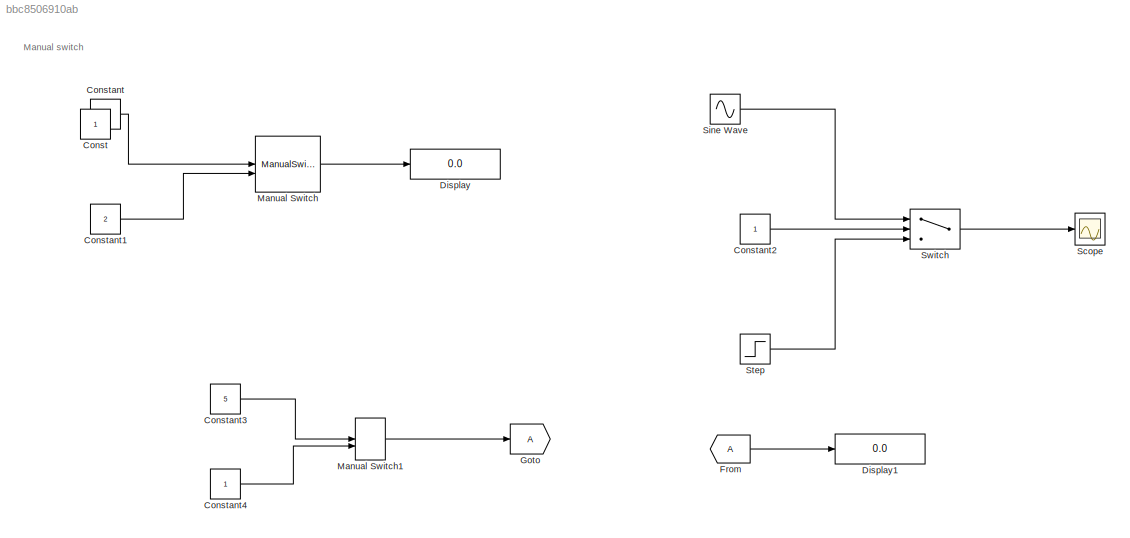
MODEL slx_bbc8506910ab
KIND model
CONFIG AbsTol = auto
CONFIG EnableMultiTasking = off
CONFIG FixedStep = auto
CONFIG MaxStep = auto
CONFIG MinStep = auto
CONFIG RelTol = 1e-3
CONFIG SampleTimeConstraint = Unconstrained
CONFIG Solver = VariableStepAuto
CONFIG SolverName = VariableStepAuto
CONFIG StartTime = 0.0
CONFIG StopTime = 10.0
BLOCK [Constant] Const
  IOType = siggen
BLOCK [Constant] Constant
  Value = 5
BLOCK [Constant] Constant1
  Value = 2
BLOCK [Constant] Constant2
BLOCK [Constant] Constant3
  Value = 5
BLOCK [Constant] Constant4
BLOCK [Display] Display
  Decimation = 1
  Ports = [1]
BLOCK [Display] Display1
  Decimation = 1
  Ports = [1]
BLOCK [From] From
BLOCK [Goto] Goto
  IconDisplay = Tag and signal name
BLOCK [ManualSwitch] Manual Switch
BLOCK [ManualSwitch] Manual Switch1
BLOCK [Scope] Scope
  NumInputPorts = 1
  Ports = [1]
  ScopeSpecificationString = Simulink.scopes.TimeScopeBlockCfg('CurrentConfiguration', extmgr.ConfigurationSet(extmgr.Configuration('Core','General UI',true),extmgr.Configuration('Core','Source UI',true),extmgr.Configuration('Sources','WiredSimulink',true),extmgr.Configuration('Visuals','Time Domain',true,'SerializedDisplays',{struct('MinYLimReal','-0.25','MaxYLimReal','2.25','YLabelReal','','MinYLimMag','0.00000','MaxYLimMag...<+1337ch>
BLOCK [Sin] Sine Wave
  Ports = [0, 1]
  SampleTime = 0
BLOCK [Step] Step
  After = 2
  SampleTime = 0
BLOCK [Switch] Switch
  Criteria = u2 > Threshold
  InputSameDT = off
  SaturateOnIntegerOverflow = off
  Threshold = 1.5
ANNOTATION (root): Manual switch
LINE Constant1:1 -> Manual Switch:2
LINE Constant2:1 -> Switch:2
LINE Constant3:1 -> Manual Switch1:1
LINE Constant4:1 -> Manual Switch1:2
LINE Constant:1 -> Manual Switch:1
LINE From:1 -> Display1:1
LINE Manual Switch1:1 -> Goto:1
LINE Manual Switch:1 -> Display:1
LINE Sine Wave:1 -> Switch:1
LINE Step:1 -> Switch:3
LINE Switch:1 -> Scope:1
